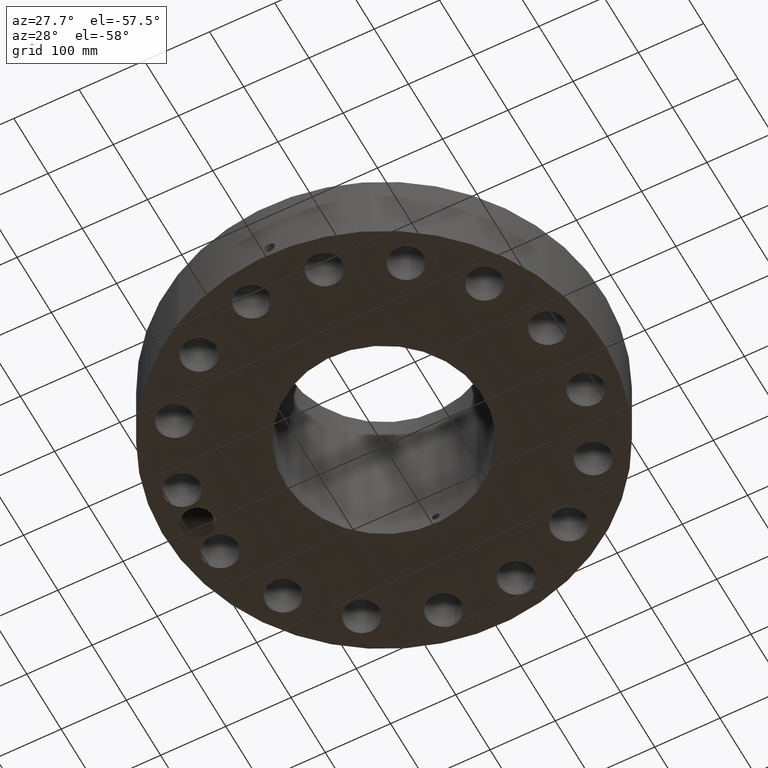
[diagram: clean part render]
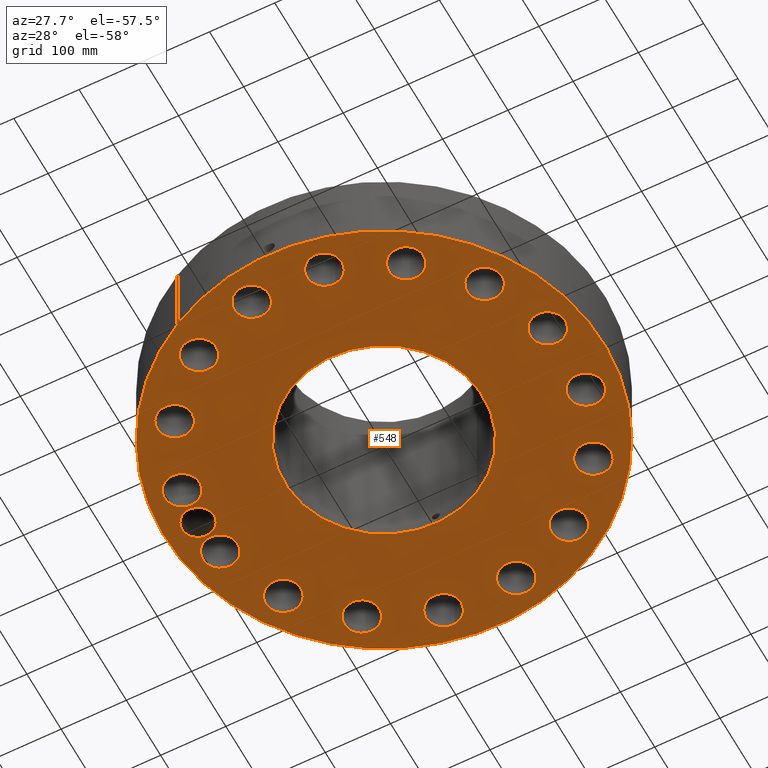
[diagram: same view with one face highlighted and labeled with its STEP entity id]
A machine part, auxiliary view. The second image highlights one B-rep face of the part: STEP entity #548.
In plain terms, the highlighted planar face has unit normal (0, 0, -1).
Its self-contained STEP definition (entity closure, byte-faithful):
#42=AXIS2_PLACEMENT_3D('Circle Axis2P3D',#40,#41,$) ;
#165=AXIS2_PLACEMENT_3D('Plane Axis2P3D',#162,#163,#164) ;
#169=AXIS2_PLACEMENT_3D('Circle Axis2P3D',#167,#168,$) ;
#178=AXIS2_PLACEMENT_3D('Circle Axis2P3D',#176,#177,$) ;
#187=AXIS2_PLACEMENT_3D('Circle Axis2P3D',#185,#186,$) ;
#244=AXIS2_PLACEMENT_3D('Circle Axis2P3D',#242,#243,$) ;
#253=AXIS2_PLACEMENT_3D('Circle Axis2P3D',#251,#252,$) ;
#262=AXIS2_PLACEMENT_3D('Circle Axis2P3D',#260,#261,$) ;
#271=AXIS2_PLACEMENT_3D('Circle Axis2P3D',#269,#270,$) ;
#280=AXIS2_PLACEMENT_3D('Circle Axis2P3D',#278,#279,$) ;
#289=AXIS2_PLACEMENT_3D('Circle Axis2P3D',#287,#288,$) ;
#298=AXIS2_PLACEMENT_3D('Circle Axis2P3D',#296,#297,$) ;
#307=AXIS2_PLACEMENT_3D('Circle Axis2P3D',#305,#306,$) ;
#316=AXIS2_PLACEMENT_3D('Circle Axis2P3D',#314,#315,$) ;
#325=AXIS2_PLACEMENT_3D('Circle Axis2P3D',#323,#324,$) ;
#334=AXIS2_PLACEMENT_3D('Circle Axis2P3D',#332,#333,$) ;
#343=AXIS2_PLACEMENT_3D('Circle Axis2P3D',#341,#342,$) ;
#352=AXIS2_PLACEMENT_3D('Circle Axis2P3D',#350,#351,$) ;
#361=AXIS2_PLACEMENT_3D('Circle Axis2P3D',#359,#360,$) ;
#370=AXIS2_PLACEMENT_3D('Circle Axis2P3D',#368,#369,$) ;
#379=AXIS2_PLACEMENT_3D('Circle Axis2P3D',#377,#378,$) ;
#388=AXIS2_PLACEMENT_3D('Circle Axis2P3D',#386,#387,$) ;
#397=AXIS2_PLACEMENT_3D('Circle Axis2P3D',#395,#396,$) ;
#406=AXIS2_PLACEMENT_3D('Circle Axis2P3D',#404,#405,$) ;
#415=AXIS2_PLACEMENT_3D('Circle Axis2P3D',#413,#414,$) ;
#424=AXIS2_PLACEMENT_3D('Circle Axis2P3D',#422,#423,$) ;
#433=AXIS2_PLACEMENT_3D('Circle Axis2P3D',#431,#432,$) ;
#442=AXIS2_PLACEMENT_3D('Circle Axis2P3D',#440,#441,$) ;
#451=AXIS2_PLACEMENT_3D('Circle Axis2P3D',#449,#450,$) ;
#460=AXIS2_PLACEMENT_3D('Circle Axis2P3D',#458,#459,$) ;
#469=AXIS2_PLACEMENT_3D('Circle Axis2P3D',#467,#468,$) ;
#478=AXIS2_PLACEMENT_3D('Circle Axis2P3D',#476,#477,$) ;
#487=AXIS2_PLACEMENT_3D('Circle Axis2P3D',#485,#486,$) ;
#496=AXIS2_PLACEMENT_3D('Circle Axis2P3D',#494,#495,$) ;
#505=AXIS2_PLACEMENT_3D('Circle Axis2P3D',#503,#504,$) ;
#514=AXIS2_PLACEMENT_3D('Circle Axis2P3D',#512,#513,$) ;
#523=AXIS2_PLACEMENT_3D('Circle Axis2P3D',#521,#522,$) ;
#532=AXIS2_PLACEMENT_3D('Circle Axis2P3D',#530,#531,$) ;
#541=AXIS2_PLACEMENT_3D('Circle Axis2P3D',#539,#540,$) ;
#40=CARTESIAN_POINT('Axis2P3D Location',(0.,0.,0.250000000001)) ;
#44=CARTESIAN_POINT('Vertex',(-6.35238838653,-11.6279689451,0.250000000001)) ;
#46=CARTESIAN_POINT('Vertex',(6.35238838653,11.6279689451,0.250000000001)) ;
#162=CARTESIAN_POINT('Axis2P3D Location',(0.,5.96900000002,0.250000000001)) ;
#167=CARTESIAN_POINT('Axis2P3D Location',(0.,0.,0.250000000001)) ;
#176=CARTESIAN_POINT('Axis2P3D Location',(-11.25,0.,0.250000000001)) ;
#180=CARTESIAN_POINT('Vertex',(-12.0842738625,0.455765888276,0.250000000001)) ;
#182=CARTESIAN_POINT('Vertex',(-11.3181240632,0.948205955753,0.250000000001)) ;
#185=CARTESIAN_POINT('Axis2P3D Location',(-11.25,0.,0.250000000001)) ;
#189=CARTESIAN_POINT('Vertex',(-10.8768759917,-0.874364853439,0.250000000001)) ;
#193=CARTESIAN_POINT('Control Point',(-10.2583569694,-0.000322662812346,0.250000000001)) ;
#194=CARTESIAN_POINT('Control Point',(-10.2611260796,-0.0777673550574,0.250000000001)) ;
#195=CARTESIAN_POINT('Control Point',(-10.2714604564,-0.154814146094,0.250000000001)) ;
#196=CARTESIAN_POINT('Control Point',(-10.2893030061,-0.230451323356,0.250000000001)) ;
#197=CARTESIAN_POINT('Control Point',(-10.3437028899,-0.389223432659,0.250000000001)) ;
#198=CARTESIAN_POINT('Control Point',(-10.4301407818,-0.532569731123,0.250000000001)) ;
#199=CARTESIAN_POINT('Control Point',(-10.4853129658,-0.6038967735,0.250000000001)) ;
#200=CARTESIAN_POINT('Control Point',(-10.5906802942,-0.711658724307,0.250000000001)) ;
#201=CARTESIAN_POINT('Control Point',(-10.7139188891,-0.796547199548,0.250000000001)) ;
#202=CARTESIAN_POINT('Control Point',(-10.7662973248,-0.826835112849,0.250000000001)) ;
#203=CARTESIAN_POINT('Control Point',(-10.8207720963,-0.852832329513,0.250000000001)) ;
#204=CARTESIAN_POINT('Control Point',(-10.8768759917,-0.874364853439,0.250000000001)) ;
#205=CARTESIAN_POINT('Vertex',(-10.2583569694,-0.000322662812347,0.250000000001)) ;
#209=CARTESIAN_POINT('Control Point',(-10.2780758554,0.235297960384,0.250000000001)) ;
#210=CARTESIAN_POINT('Control Point',(-10.2685297927,0.188779087066,0.250000000001)) ;
#211=CARTESIAN_POINT('Control Point',(-10.2617554905,0.141735209297,0.250000000001)) ;
#212=CARTESIAN_POINT('Control Point',(-10.2577955457,0.094385836364,0.250000000001)) ;
#213=CARTESIAN_POINT('Control Point',(-10.2566664234,0.046957442699,0.250000000001)) ;
#214=CARTESIAN_POINT('Control Point',(-10.2583569694,-0.000322662812347,0.250000000001)) ;
#215=CARTESIAN_POINT('Vertex',(-10.2780758554,0.23529796039,0.250000000001)) ;
#219=CARTESIAN_POINT('Control Point',(-10.2780758554,0.23529796039,0.250000000001)) ;
#220=CARTESIAN_POINT('Control Point',(-10.302519785,0.322721139472,0.250000000001)) ;
#221=CARTESIAN_POINT('Control Point',(-10.3368404436,0.407191729121,0.250000000001)) ;
#222=CARTESIAN_POINT('Control Point',(-10.3805938961,0.487217456163,0.250000000001)) ;
#223=CARTESIAN_POINT('Control Point',(-10.485354984,0.635560177179,0.250000000001)) ;
#224=CARTESIAN_POINT('Control Point',(-10.6204063392,0.755935793587,0.250000000001)) ;
#225=CARTESIAN_POINT('Control Point',(-10.694439759,0.807975703386,0.250000000001)) ;
#226=CARTESIAN_POINT('Control Point',(-10.8075798731,0.869358083394,0.250000000001)) ;
#227=CARTESIAN_POINT('Control Point',(-10.9282531984,0.911080370476,0.250000000001)) ;
#228=CARTESIAN_POINT('Control Point',(-10.965004057,0.921779805106,0.250000000001)) ;
#229=CARTESIAN_POINT('Control Point',(-11.0568795301,0.943647582253,0.250000000001)) ;
#230=CARTESIAN_POINT('Control Point',(-11.1506562742,0.954113016688,0.250000000001)) ;
#231=CARTESIAN_POINT('Control Point',(-11.2067471543,0.956236726045,0.250000000001)) ;
#232=CARTESIAN_POINT('Control Point',(-11.2627020773,0.954249679083,0.250000000001)) ;
#233=CARTESIAN_POINT('Control Point',(-11.3181240632,0.948205955753,0.250000000001)) ;
#242=CARTESIAN_POINT('Axis2P3D Location',(11.0338344046,-2.19476612269,0.250000000001)) ;
#246=CARTESIAN_POINT('Vertex',(11.9640719202,-2.70295719361,0.250000000001)) ;
#248=CARTESIAN_POINT('Vertex',(10.103596889,-1.68657505177,0.250000000001)) ;
#251=CARTESIAN_POINT('Axis2P3D Location',(11.0338344046,-2.19476612269,0.250000000001)) ;
#260=CARTESIAN_POINT('Axis2P3D Location',(0.,0.,0.250000000001)) ;
#264=CARTESIAN_POINT('Vertex',(2.86169103994,5.23829031194,0.250000000001)) ;
#266=CARTESIAN_POINT('Vertex',(-2.86169103994,-5.23829031194,0.250000000001)) ;
#269=CARTESIAN_POINT('Axis2P3D Location',(0.,0.,0.250000000001)) ;
#278=CARTESIAN_POINT('Axis2P3D Location',(9.35403313844,-6.2501651215,0.250000000001)) ;
#282=CARTESIAN_POINT('Vertex',(8.68908204072,-5.42467130708,0.250000000001)) ;
#284=CARTESIAN_POINT('Vertex',(10.0189842362,-7.07565893591,0.250000000001)) ;
#287=CARTESIAN_POINT('Axis2P3D Location',(9.35403313844,-6.2501651215,0.250000000001)) ;
#296=CARTESIAN_POINT('Axis2P3D Location',(6.2501651215,-9.35403313844,0.250000000001)) ;
#300=CARTESIAN_POINT('Vertex',(5.95173321848,-8.33691053065,0.250000000001)) ;
#302=CARTESIAN_POINT('Vertex',(6.54859702451,-10.3711557462,0.250000000001)) ;
#305=CARTESIAN_POINT('Axis2P3D Location',(6.2501651215,-9.35403313844,0.250000000001)) ;
#314=CARTESIAN_POINT('Axis2P3D Location',(2.19476612269,-11.0338344046,0.250000000001)) ;
#318=CARTESIAN_POINT('Vertex',(2.30828696633,-9.97993070022,0.250000000001)) ;
#320=CARTESIAN_POINT('Vertex',(2.08124527905,-12.0877381089,0.250000000001)) ;
#323=CARTESIAN_POINT('Axis2P3D Location',(2.19476612269,-11.0338344046,0.250000000001)) ;
#332=CARTESIAN_POINT('Axis2P3D Location',(-2.19476612269,-11.0338344046,0.250000000001)) ;
#336=CARTESIAN_POINT('Vertex',(-1.68657505177,-10.103596889,0.250000000001)) ;
#338=CARTESIAN_POINT('Vertex',(-2.70295719361,-11.9640719202,0.250000000001)) ;
#341=CARTESIAN_POINT('Axis2P3D Location',(-2.19476612269,-11.0338344046,0.250000000001)) ;
#350=CARTESIAN_POINT('Axis2P3D Location',(-6.2501651215,-9.35403313844,0.250000000001)) ;
#354=CARTESIAN_POINT('Vertex',(-5.42467130708,-8.68908204072,0.250000000001)) ;
#356=CARTESIAN_POINT('Vertex',(-7.07565893591,-10.0189842362,0.250000000001)) ;
#359=CARTESIAN_POINT('Axis2P3D Location',(-6.2501651215,-9.35403313844,0.250000000001)) ;
#368=CARTESIAN_POINT('Axis2P3D Location',(-9.35403313844,-6.2501651215,0.250000000001)) ;
#372=CARTESIAN_POINT('Vertex',(-8.33691053065,-5.95173321848,0.250000000001)) ;
#374=CARTESIAN_POINT('Vertex',(-10.3711557462,-6.54859702451,0.250000000001)) ;
#377=CARTESIAN_POINT('Axis2P3D Location',(-9.35403313844,-6.2501651215,0.250000000001)) ;
#386=CARTESIAN_POINT('Axis2P3D Location',(-11.0338344046,-2.19476612269,0.250000000001)) ;
#390=CARTESIAN_POINT('Vertex',(-9.97993070022,-2.30828696633,0.250000000001)) ;
#392=CARTESIAN_POINT('Vertex',(-12.0877381089,-2.08124527905,0.250000000001)) ;
#395=CARTESIAN_POINT('Axis2P3D Location',(-11.0338344046,-2.19476612269,0.250000000001)) ;
#404=CARTESIAN_POINT('Axis2P3D Location',(-11.0338344046,2.19476612269,0.250000000001)) ;
#408=CARTESIAN_POINT('Vertex',(-10.103596889,1.68657505177,0.250000000001)) ;
#410=CARTESIAN_POINT('Vertex',(-11.9640719202,2.70295719361,0.250000000001)) ;
#413=CARTESIAN_POINT('Axis2P3D Location',(-11.0338344046,2.19476612269,0.250000000001)) ;
#422=CARTESIAN_POINT('Axis2P3D Location',(-9.35403313844,6.2501651215,0.250000000001)) ;
#426=CARTESIAN_POINT('Vertex',(-8.68908204072,5.42467130708,0.250000000001)) ;
#428=CARTESIAN_POINT('Vertex',(-10.0189842362,7.07565893591,0.250000000001)) ;
#431=CARTESIAN_POINT('Axis2P3D Location',(-9.35403313844,6.2501651215,0.250000000001)) ;
#440=CARTESIAN_POINT('Axis2P3D Location',(-6.2501651215,9.35403313844,0.250000000001)) ;
#444=CARTESIAN_POINT('Vertex',(-5.95173321848,8.33691053065,0.250000000001)) ;
#446=CARTESIAN_POINT('Vertex',(-6.54859702451,10.3711557462,0.250000000001)) ;
#449=CARTESIAN_POINT('Axis2P3D Location',(-6.2501651215,9.35403313844,0.250000000001)) ;
#458=CARTESIAN_POINT('Axis2P3D Location',(-2.19476612269,11.0338344046,0.250000000001)) ;
#462=CARTESIAN_POINT('Vertex',(-2.30828696633,9.97993070022,0.250000000001)) ;
#464=CARTESIAN_POINT('Vertex',(-2.08124527905,12.0877381089,0.250000000001)) ;
#467=CARTESIAN_POINT('Axis2P3D Location',(-2.19476612269,11.0338344046,0.250000000001)) ;
#476=CARTESIAN_POINT('Axis2P3D Location',(2.19476612269,11.0338344046,0.250000000001)) ;
#480=CARTESIAN_POINT('Vertex',(1.68657505177,10.103596889,0.250000000001)) ;
#482=CARTESIAN_POINT('Vertex',(2.70295719361,11.9640719202,0.250000000001)) ;
#485=CARTESIAN_POINT('Axis2P3D Location',(2.19476612269,11.0338344046,0.250000000001)) ;
#494=CARTESIAN_POINT('Axis2P3D Location',(6.2501651215,9.35403313844,0.250000000001)) ;
#498=CARTESIAN_POINT('Vertex',(5.42467130708,8.68908204072,0.250000000001)) ;
#500=CARTESIAN_POINT('Vertex',(7.07565893591,10.0189842362,0.250000000001)) ;
#503=CARTESIAN_POINT('Axis2P3D Location',(6.2501651215,9.35403313844,0.250000000001)) ;
#512=CARTESIAN_POINT('Axis2P3D Location',(9.35403313844,6.2501651215,0.250000000001)) ;
#516=CARTESIAN_POINT('Vertex',(8.33691053065,5.95173321848,0.250000000001)) ;
#518=CARTESIAN_POINT('Vertex',(10.3711557462,6.54859702451,0.250000000001)) ;
#521=CARTESIAN_POINT('Axis2P3D Location',(9.35403313844,6.2501651215,0.250000000001)) ;
#530=CARTESIAN_POINT('Axis2P3D Location',(11.0338344046,2.19476612269,0.250000000001)) ;
#534=CARTESIAN_POINT('Vertex',(9.97993070022,2.30828696633,0.250000000001)) ;
#536=CARTESIAN_POINT('Vertex',(12.0877381089,2.08124527905,0.250000000001)) ;
#539=CARTESIAN_POINT('Axis2P3D Location',(11.0338344046,2.19476612269,0.250000000001)) ;
#41=DIRECTION('Axis2P3D Direction',(0.,0.,-0.0393700787402)) ;
#163=DIRECTION('Axis2P3D Direction',(0.,0.,-0.0393700787402)) ;
#164=DIRECTION('Axis2P3D XDirection',(0.0393700787402,0.,0.)) ;
#168=DIRECTION('Axis2P3D Direction',(0.,0.,-0.0393700787402)) ;
#177=DIRECTION('Axis2P3D Direction',(0.,0.,-0.0393700787402)) ;
#186=DIRECTION('Axis2P3D Direction',(0.,0.,-0.0393700787402)) ;
#243=DIRECTION('Axis2P3D Direction',(0.,0.,-0.0393700787402)) ;
#252=DIRECTION('Axis2P3D Direction',(0.,0.,-0.0393700787402)) ;
#261=DIRECTION('Axis2P3D Direction',(0.,0.,-0.0393700787402)) ;
#270=DIRECTION('Axis2P3D Direction',(0.,0.,-0.0393700787402)) ;
#279=DIRECTION('Axis2P3D Direction',(0.,0.,-0.0393700787402)) ;
#288=DIRECTION('Axis2P3D Direction',(0.,0.,-0.0393700787402)) ;
#297=DIRECTION('Axis2P3D Direction',(0.,0.,-0.0393700787402)) ;
#306=DIRECTION('Axis2P3D Direction',(0.,0.,-0.0393700787402)) ;
#315=DIRECTION('Axis2P3D Direction',(0.,0.,-0.0393700787402)) ;
#324=DIRECTION('Axis2P3D Direction',(0.,0.,-0.0393700787402)) ;
#333=DIRECTION('Axis2P3D Direction',(0.,0.,-0.0393700787402)) ;
#342=DIRECTION('Axis2P3D Direction',(0.,0.,-0.0393700787402)) ;
#351=DIRECTION('Axis2P3D Direction',(0.,0.,-0.0393700787402)) ;
#360=DIRECTION('Axis2P3D Direction',(0.,0.,-0.0393700787402)) ;
#369=DIRECTION('Axis2P3D Direction',(0.,0.,-0.0393700787402)) ;
#378=DIRECTION('Axis2P3D Direction',(0.,0.,-0.0393700787402)) ;
#387=DIRECTION('Axis2P3D Direction',(0.,0.,-0.0393700787402)) ;
#396=DIRECTION('Axis2P3D Direction',(0.,0.,-0.0393700787402)) ;
#405=DIRECTION('Axis2P3D Direction',(0.,0.,-0.0393700787402)) ;
#414=DIRECTION('Axis2P3D Direction',(0.,0.,-0.0393700787402)) ;
#423=DIRECTION('Axis2P3D Direction',(0.,0.,-0.0393700787402)) ;
#432=DIRECTION('Axis2P3D Direction',(0.,0.,-0.0393700787402)) ;
#441=DIRECTION('Axis2P3D Direction',(0.,0.,-0.0393700787402)) ;
#450=DIRECTION('Axis2P3D Direction',(0.,0.,-0.0393700787402)) ;
#459=DIRECTION('Axis2P3D Direction',(0.,0.,-0.0393700787402)) ;
#468=DIRECTION('Axis2P3D Direction',(0.,0.,-0.0393700787402)) ;
#477=DIRECTION('Axis2P3D Direction',(0.,0.,-0.0393700787402)) ;
#486=DIRECTION('Axis2P3D Direction',(0.,0.,-0.0393700787402)) ;
#495=DIRECTION('Axis2P3D Direction',(0.,0.,-0.0393700787402)) ;
#504=DIRECTION('Axis2P3D Direction',(0.,0.,-0.0393700787402)) ;
#513=DIRECTION('Axis2P3D Direction',(0.,0.,-0.0393700787402)) ;
#522=DIRECTION('Axis2P3D Direction',(0.,0.,-0.0393700787402)) ;
#531=DIRECTION('Axis2P3D Direction',(0.,0.,-0.0393700787402)) ;
#540=DIRECTION('Axis2P3D Direction',(0.,0.,-0.0393700787402)) ;
#173=ORIENTED_EDGE('',*,*,#48,.T.) ;
#174=ORIENTED_EDGE('',*,*,#171,.T.) ;
#236=ORIENTED_EDGE('',*,*,#184,.F.) ;
#237=ORIENTED_EDGE('',*,*,#191,.F.) ;
#238=ORIENTED_EDGE('',*,*,#207,.F.) ;
#239=ORIENTED_EDGE('',*,*,#217,.F.) ;
#240=ORIENTED_EDGE('',*,*,#234,.T.) ;
#257=ORIENTED_EDGE('',*,*,#250,.F.) ;
#258=ORIENTED_EDGE('',*,*,#255,.F.) ;
#275=ORIENTED_EDGE('',*,*,#268,.F.) ;
#276=ORIENTED_EDGE('',*,*,#273,.F.) ;
#293=ORIENTED_EDGE('',*,*,#286,.F.) ;
#294=ORIENTED_EDGE('',*,*,#291,.F.) ;
#311=ORIENTED_EDGE('',*,*,#304,.F.) ;
#312=ORIENTED_EDGE('',*,*,#309,.F.) ;
#329=ORIENTED_EDGE('',*,*,#322,.F.) ;
#330=ORIENTED_EDGE('',*,*,#327,.F.) ;
#347=ORIENTED_EDGE('',*,*,#340,.F.) ;
#348=ORIENTED_EDGE('',*,*,#345,.F.) ;
#365=ORIENTED_EDGE('',*,*,#358,.F.) ;
#366=ORIENTED_EDGE('',*,*,#363,.F.) ;
#383=ORIENTED_EDGE('',*,*,#376,.F.) ;
#384=ORIENTED_EDGE('',*,*,#381,.F.) ;
#401=ORIENTED_EDGE('',*,*,#394,.F.) ;
#402=ORIENTED_EDGE('',*,*,#399,.F.) ;
#419=ORIENTED_EDGE('',*,*,#412,.F.) ;
#420=ORIENTED_EDGE('',*,*,#417,.F.) ;
#437=ORIENTED_EDGE('',*,*,#430,.F.) ;
#438=ORIENTED_EDGE('',*,*,#435,.F.) ;
#455=ORIENTED_EDGE('',*,*,#448,.F.) ;
#456=ORIENTED_EDGE('',*,*,#453,.F.) ;
#473=ORIENTED_EDGE('',*,*,#466,.F.) ;
#474=ORIENTED_EDGE('',*,*,#471,.F.) ;
#491=ORIENTED_EDGE('',*,*,#484,.F.) ;
#492=ORIENTED_EDGE('',*,*,#489,.F.) ;
#509=ORIENTED_EDGE('',*,*,#502,.F.) ;
#510=ORIENTED_EDGE('',*,*,#507,.F.) ;
#527=ORIENTED_EDGE('',*,*,#520,.F.) ;
#528=ORIENTED_EDGE('',*,*,#525,.F.) ;
#545=ORIENTED_EDGE('',*,*,#538,.F.) ;
#546=ORIENTED_EDGE('',*,*,#543,.F.) ;
#241=FACE_BOUND('',#235,.T.) ;
#259=FACE_BOUND('',#256,.T.) ;
#277=FACE_BOUND('',#274,.T.) ;
#295=FACE_BOUND('',#292,.T.) ;
#313=FACE_BOUND('',#310,.T.) ;
#331=FACE_BOUND('',#328,.T.) ;
#349=FACE_BOUND('',#346,.T.) ;
#367=FACE_BOUND('',#364,.T.) ;
#385=FACE_BOUND('',#382,.T.) ;
#403=FACE_BOUND('',#400,.T.) ;
#421=FACE_BOUND('',#418,.T.) ;
#439=FACE_BOUND('',#436,.T.) ;
#457=FACE_BOUND('',#454,.T.) ;
#475=FACE_BOUND('',#472,.T.) ;
#493=FACE_BOUND('',#490,.T.) ;
#511=FACE_BOUND('',#508,.T.) ;
#529=FACE_BOUND('',#526,.T.) ;
#547=FACE_BOUND('',#544,.T.) ;
#548=ADVANCED_FACE('PartBody',(#175,#241,#259,#277,#295,#313,#331,#349,#367,#385,#403,#421,#439,#457,#475,#493,#511,#529,#547),#166,.T.) ;
#192=B_SPLINE_CURVE_WITH_KNOTS('',5,(#193,#194,#195,#196,#197,#198,#199,#200,#201,#202,#203,#204),.UNSPECIFIED.,.F.,.U.,(6,3,3,6),(0.,13.6053137017,29.4922108286,40.2809395487),.UNSPECIFIED.) ;
#208=B_SPLINE_CURVE_WITH_KNOTS('',5,(#209,#210,#211,#212,#213,#214),.UNSPECIFIED.,.F.,.U.,(6,6),(0.,8.30606525326),.UNSPECIFIED.) ;
#218=B_SPLINE_CURVE_WITH_KNOTS('',5,(#219,#220,#221,#222,#223,#224,#225,#226,#227,#228,#229,#230,#231,#232,#233),.UNSPECIFIED.,.F.,.U.,(6,3,3,3,6),(0.,15.8774706623,31.7511498704,38.5505362666,48.5496545462),.UNSPECIFIED.) ;
#43=CIRCLE('generated circle',#42,13.2500000001) ;
#170=CIRCLE('generated circle',#169,13.2500000001) ;
#179=CIRCLE('generated circle',#178,0.950650000004) ;
#188=CIRCLE('generated circle',#187,0.950650000004) ;
#245=CIRCLE('generated circle',#244,1.06) ;
#254=CIRCLE('generated circle',#253,1.06) ;
#263=CIRCLE('generated circle',#262,5.96900000002) ;
#272=CIRCLE('generated circle',#271,5.96900000002) ;
#281=CIRCLE('generated circle',#280,1.06) ;
#290=CIRCLE('generated circle',#289,1.06) ;
#299=CIRCLE('generated circle',#298,1.06) ;
#308=CIRCLE('generated circle',#307,1.06) ;
#317=CIRCLE('generated circle',#316,1.06) ;
#326=CIRCLE('generated circle',#325,1.06) ;
#335=CIRCLE('generated circle',#334,1.06) ;
#344=CIRCLE('generated circle',#343,1.06) ;
#353=CIRCLE('generated circle',#352,1.06) ;
#362=CIRCLE('generated circle',#361,1.06) ;
#371=CIRCLE('generated circle',#370,1.06) ;
#380=CIRCLE('generated circle',#379,1.06) ;
#389=CIRCLE('generated circle',#388,1.06) ;
#398=CIRCLE('generated circle',#397,1.06) ;
#407=CIRCLE('generated circle',#406,1.06) ;
#416=CIRCLE('generated circle',#415,1.06) ;
#425=CIRCLE('generated circle',#424,1.06) ;
#434=CIRCLE('generated circle',#433,1.06) ;
#443=CIRCLE('generated circle',#442,1.06) ;
#452=CIRCLE('generated circle',#451,1.06) ;
#461=CIRCLE('generated circle',#460,1.06) ;
#470=CIRCLE('generated circle',#469,1.06) ;
#479=CIRCLE('generated circle',#478,1.06) ;
#488=CIRCLE('generated circle',#487,1.06) ;
#497=CIRCLE('generated circle',#496,1.06) ;
#506=CIRCLE('generated circle',#505,1.06) ;
#515=CIRCLE('generated circle',#514,1.06) ;
#524=CIRCLE('generated circle',#523,1.06) ;
#533=CIRCLE('generated circle',#532,1.06) ;
#542=CIRCLE('generated circle',#541,1.06) ;
#48=EDGE_CURVE('',#45,#47,#43,.T.) ;
#171=EDGE_CURVE('',#47,#45,#170,.T.) ;
#184=EDGE_CURVE('',#181,#183,#179,.T.) ;
#191=EDGE_CURVE('',#190,#181,#188,.T.) ;
#207=EDGE_CURVE('',#206,#190,#192,.T.) ;
#217=EDGE_CURVE('',#216,#206,#208,.T.) ;
#234=EDGE_CURVE('',#216,#183,#218,.T.) ;
#250=EDGE_CURVE('',#247,#249,#245,.T.) ;
#255=EDGE_CURVE('',#249,#247,#254,.T.) ;
#268=EDGE_CURVE('',#265,#267,#263,.T.) ;
#273=EDGE_CURVE('',#267,#265,#272,.T.) ;
#286=EDGE_CURVE('',#283,#285,#281,.T.) ;
#291=EDGE_CURVE('',#285,#283,#290,.T.) ;
#304=EDGE_CURVE('',#301,#303,#299,.T.) ;
#309=EDGE_CURVE('',#303,#301,#308,.T.) ;
#322=EDGE_CURVE('',#319,#321,#317,.T.) ;
#327=EDGE_CURVE('',#321,#319,#326,.T.) ;
#340=EDGE_CURVE('',#337,#339,#335,.T.) ;
#345=EDGE_CURVE('',#339,#337,#344,.T.) ;
#358=EDGE_CURVE('',#355,#357,#353,.T.) ;
#363=EDGE_CURVE('',#357,#355,#362,.T.) ;
#376=EDGE_CURVE('',#373,#375,#371,.T.) ;
#381=EDGE_CURVE('',#375,#373,#380,.T.) ;
#394=EDGE_CURVE('',#391,#393,#389,.T.) ;
#399=EDGE_CURVE('',#393,#391,#398,.T.) ;
#412=EDGE_CURVE('',#409,#411,#407,.T.) ;
#417=EDGE_CURVE('',#411,#409,#416,.T.) ;
#430=EDGE_CURVE('',#427,#429,#425,.T.) ;
#435=EDGE_CURVE('',#429,#427,#434,.T.) ;
#448=EDGE_CURVE('',#445,#447,#443,.T.) ;
#453=EDGE_CURVE('',#447,#445,#452,.T.) ;
#466=EDGE_CURVE('',#463,#465,#461,.T.) ;
#471=EDGE_CURVE('',#465,#463,#470,.T.) ;
#484=EDGE_CURVE('',#481,#483,#479,.T.) ;
#489=EDGE_CURVE('',#483,#481,#488,.T.) ;
#502=EDGE_CURVE('',#499,#501,#497,.T.) ;
#507=EDGE_CURVE('',#501,#499,#506,.T.) ;
#520=EDGE_CURVE('',#517,#519,#515,.T.) ;
#525=EDGE_CURVE('',#519,#517,#524,.T.) ;
#538=EDGE_CURVE('',#535,#537,#533,.T.) ;
#543=EDGE_CURVE('',#537,#535,#542,.T.) ;
#172=EDGE_LOOP('',(#173,#174)) ;
#235=EDGE_LOOP('',(#236,#237,#238,#239,#240)) ;
#256=EDGE_LOOP('',(#257,#258)) ;
#274=EDGE_LOOP('',(#275,#276)) ;
#292=EDGE_LOOP('',(#293,#294)) ;
#310=EDGE_LOOP('',(#311,#312)) ;
#328=EDGE_LOOP('',(#329,#330)) ;
#346=EDGE_LOOP('',(#347,#348)) ;
#364=EDGE_LOOP('',(#365,#366)) ;
#382=EDGE_LOOP('',(#383,#384)) ;
#400=EDGE_LOOP('',(#401,#402)) ;
#418=EDGE_LOOP('',(#419,#420)) ;
#436=EDGE_LOOP('',(#437,#438)) ;
#454=EDGE_LOOP('',(#455,#456)) ;
#472=EDGE_LOOP('',(#473,#474)) ;
#490=EDGE_LOOP('',(#491,#492)) ;
#508=EDGE_LOOP('',(#509,#510)) ;
#526=EDGE_LOOP('',(#527,#528)) ;
#544=EDGE_LOOP('',(#545,#546)) ;
#175=FACE_OUTER_BOUND('',#172,.T.) ;
#166=PLANE('',#165) ;
#45=VERTEX_POINT('',#44) ;
#47=VERTEX_POINT('',#46) ;
#181=VERTEX_POINT('',#180) ;
#183=VERTEX_POINT('',#182) ;
#190=VERTEX_POINT('',#189) ;
#206=VERTEX_POINT('',#205) ;
#216=VERTEX_POINT('',#215) ;
#247=VERTEX_POINT('',#246) ;
#249=VERTEX_POINT('',#248) ;
#265=VERTEX_POINT('',#264) ;
#267=VERTEX_POINT('',#266) ;
#283=VERTEX_POINT('',#282) ;
#285=VERTEX_POINT('',#284) ;
#301=VERTEX_POINT('',#300) ;
#303=VERTEX_POINT('',#302) ;
#319=VERTEX_POINT('',#318) ;
#321=VERTEX_POINT('',#320) ;
#337=VERTEX_POINT('',#336) ;
#339=VERTEX_POINT('',#338) ;
#355=VERTEX_POINT('',#354) ;
#357=VERTEX_POINT('',#356) ;
#373=VERTEX_POINT('',#372) ;
#375=VERTEX_POINT('',#374) ;
#391=VERTEX_POINT('',#390) ;
#393=VERTEX_POINT('',#392) ;
#409=VERTEX_POINT('',#408) ;
#411=VERTEX_POINT('',#410) ;
#427=VERTEX_POINT('',#426) ;
#429=VERTEX_POINT('',#428) ;
#445=VERTEX_POINT('',#444) ;
#447=VERTEX_POINT('',#446) ;
#463=VERTEX_POINT('',#462) ;
#465=VERTEX_POINT('',#464) ;
#481=VERTEX_POINT('',#480) ;
#483=VERTEX_POINT('',#482) ;
#499=VERTEX_POINT('',#498) ;
#501=VERTEX_POINT('',#500) ;
#517=VERTEX_POINT('',#516) ;
#519=VERTEX_POINT('',#518) ;
#535=VERTEX_POINT('',#534) ;
#537=VERTEX_POINT('',#536) ;